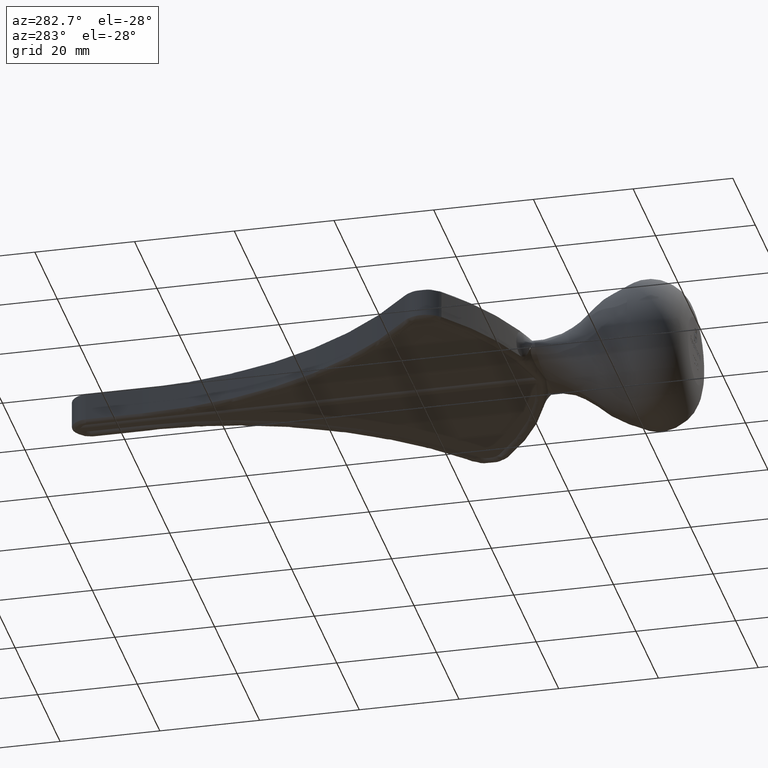
[diagram: clean part render]
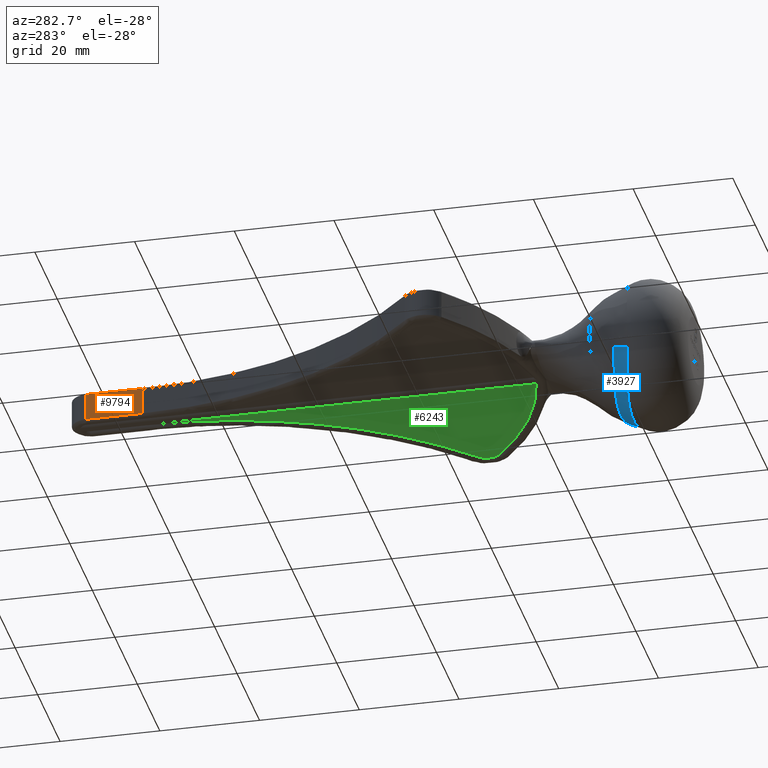
[diagram: same view with three faces highlighted in distinct colors, each labeled with its STEP entity id]
A machine part, auxiliary view with three faces highlighted in distinct colors.
Their STEP definitions:

[orange] entity #9794 — the highlighted planar face has unit normal (1, -0, 0).
#63 = CARTESIAN_POINT ( 'NONE',  ( -3.499999999999989342, 80.22055313612831640, 2.750000000000000000 ) ) ;
#556 = ORIENTED_EDGE ( 'NONE', *, *, #1706, .T. ) ;
#1153 = CARTESIAN_POINT ( 'NONE',  ( -3.499999999999989342, 80.22055313612831640, -2.750000000000000000 ) ) ;
#1706 = EDGE_CURVE ( 'NONE', #9170, #10232, #2987, .T. ) ;
#2189 = VERTEX_POINT ( 'NONE', #1153 ) ;
#2220 = AXIS2_PLACEMENT_3D ( 'NONE', #3079, #9316, #3130 ) ;
#2453 = CARTESIAN_POINT ( 'NONE',  ( -3.500000000000000000, 91.50000000000000000, 2.750000000000000000 ) ) ;
#2479 = ORIENTED_EDGE ( 'NONE', *, *, #8619, .F. ) ;
#2632 = LINE ( 'NONE', #2966, #13287 ) ;
#2818 = CARTESIAN_POINT ( 'NONE',  ( -3.499999999999989342, 80.22055313612831640, 2.750000000000000000 ) ) ;
#2830 = VECTOR ( 'NONE', #9673, 1000.000000000000000 ) ;
#2966 = CARTESIAN_POINT ( 'NONE',  ( -3.500000000000000000, 91.50000000000000000, 2.750000000000000000 ) ) ;
#2987 = LINE ( 'NONE', #2453, #2830 ) ;
#3079 = CARTESIAN_POINT ( 'NONE',  ( -3.500000000000000000, 91.50000000000000000, 2.750000000000000000 ) ) ;
#3130 = DIRECTION ( 'NONE',  ( -2.691413967012009915E-16, -1.000000000000000000, 0.000000000000000000 ) ) ;
#3561 = EDGE_CURVE ( 'NONE', #2189, #12040, #10867, .T. ) ;
#3812 = EDGE_CURVE ( 'NONE', #10232, #12040, #2632, .T. ) ;
#4338 = ORIENTED_EDGE ( 'NONE', *, *, #3812, .T. ) ;
#4439 = VECTOR ( 'NONE', #6558, 1000.000000000000000 ) ;
#4660 = FACE_OUTER_BOUND ( 'NONE', #6322, .T. ) ;
#5181 = DIRECTION ( 'NONE',  ( 0.000000000000000000, -0.000000000000000000, -1.000000000000000000 ) ) ;
#6322 = EDGE_LOOP ( 'NONE', ( #2479, #556, #4338, #9388 ) ) ;
#6558 = DIRECTION ( 'NONE',  ( 2.691413967012009915E-16, 1.000000000000000000, 0.000000000000000000 ) ) ;
#7699 = CARTESIAN_POINT ( 'NONE',  ( -3.500000000000000000, 91.50000000000000000, -2.750000000000000000 ) ) ;
#7845 = CARTESIAN_POINT ( 'NONE',  ( -3.500000000000000000, 91.50000000000000000, 2.750000000000000000 ) ) ;
#8619 = EDGE_CURVE ( 'NONE', #9170, #2189, #9665, .T. ) ;
#9170 = VERTEX_POINT ( 'NONE', #2818 ) ;
#9272 = PLANE ( 'NONE',  #2220 ) ;
#9316 = DIRECTION ( 'NONE',  ( 1.000000000000000000, -2.691413967012009915E-16, 0.000000000000000000 ) ) ;
#9388 = ORIENTED_EDGE ( 'NONE', *, *, #3561, .F. ) ;
#9665 = LINE ( 'NONE', #63, #9831 ) ;
#9673 = DIRECTION ( 'NONE',  ( 2.691413967012009915E-16, 1.000000000000000000, 0.000000000000000000 ) ) ;
#9721 = DIRECTION ( 'NONE',  ( 0.000000000000000000, -0.000000000000000000, -1.000000000000000000 ) ) ;
#9794 = ADVANCED_FACE ( 'NONE', ( #4660 ), #9272, .F. ) ;
#9831 = VECTOR ( 'NONE', #9721, 1000.000000000000000 ) ;
#10024 = CARTESIAN_POINT ( 'NONE',  ( -3.500000000000000000, 91.50000000000000000, -2.750000000000000000 ) ) ;
#10232 = VERTEX_POINT ( 'NONE', #7845 ) ;
#10867 = LINE ( 'NONE', #7699, #4439 ) ;
#12040 = VERTEX_POINT ( 'NONE', #10024 ) ;
#13287 = VECTOR ( 'NONE', #5181, 1000.000000000000000 ) ;

[blue] entity #3927 — the highlighted face is a freeform B-spline surface patch.
#37 = CARTESIAN_POINT ( 'NONE',  ( 9.457049239446869038, -15.29811107170672102, -9.337721177825997643 ) ) ;
#86 = CARTESIAN_POINT ( 'NONE',  ( 2.958696135714218300, -16.35677507865203850, -12.82936167111377301 ) ) ;
#103 = CARTESIAN_POINT ( 'NONE',  ( -4.798319511688534433, -15.21649905641184297, -11.89051643179240436 ) ) ;
#126 = CARTESIAN_POINT ( 'NONE',  ( -11.73944351171987677, -15.46893405801362142, -6.956195037441780471 ) ) ;
#168 = CARTESIAN_POINT ( 'NONE',  ( -10.90717565962784263, -15.40324440553401431, -7.952809323019762289 ) ) ;
#207 = CARTESIAN_POINT ( 'NONE',  ( -10.39664460703154880, -18.59951276368440887, -9.933711574310580161 ) ) ;
#254 = CARTESIAN_POINT ( 'NONE',  ( -9.586236405178045317, -18.44489316331959117, -10.64861187983610691 ) ) ;
#295 = CARTESIAN_POINT ( 'NONE',  ( -5.789350719536143330, -16.53583841179381508, -12.00641579287233007 ) ) ;
#374 = CARTESIAN_POINT ( 'NONE',  ( -13.01163646434195975, -15.57864506506640012, -4.761838968377503534 ) ) ;
#418 = CARTESIAN_POINT ( 'NONE',  ( -13.51708513831058767, -19.27571513717974128, -5.583400365635185381 ) ) ;
#525 = DIRECTION ( 'NONE',  ( -0.9281985529405438751, 0.000000000000000000, -0.3720852675383430896 ) ) ;
#595 = CARTESIAN_POINT ( 'NONE',  ( -0.7397197471933926183, -17.51919571465572290, -13.83219947119096815 ) ) ;
#723 = CARTESIAN_POINT ( 'NONE',  ( -1.480698699643310023, -17.53802779033320647, -13.78382446333015388 ) ) ;
#828 = CARTESIAN_POINT ( 'NONE',  ( 13.19969417268473855, -16.60361085135690828, -4.688553657042522360 ) ) ;
#908 = CARTESIAN_POINT ( 'NONE',  ( 12.82238443051230803, -17.41923528329976989, -5.713914678092316457 ) ) ;
#958 = CARTESIAN_POINT ( 'NONE',  ( 12.08024265841885025, -18.94797258129899831, -8.070866287226245106 ) ) ;
#1004 = CARTESIAN_POINT ( 'NONE',  ( 10.44896142304235021, -17.05512803860363746, -8.971356741587825923 ) ) ;
#1052 = CARTESIAN_POINT ( 'NONE',  ( 4.042668155017661746, -16.41232446801206990, -12.58425057347027121 ) ) ;
#1076 = CARTESIAN_POINT ( 'NONE',  ( -5.462241461063364056, -15.28140742889219794, -11.67655721187844087 ) ) ;
#1090 = CARTESIAN_POINT ( 'NONE',  ( 12.74525929928090484, -16.50707585591511162, -5.635907293946209151 ) ) ;
#1108 = CARTESIAN_POINT ( 'NONE',  ( 2.957420856037541235, -17.61404452517505348, -13.57499106675135003 ) ) ;
#1127 = CARTESIAN_POINT ( 'NONE',  ( -12.22217726730719001, -16.38608398800847965, -6.514844427469616228 ) ) ;
#1156 = CARTESIAN_POINT ( 'NONE',  ( -0.7778312933347391045, -14.97404586446582364, -12.53400461856547032 ) ) ;
#1178 = CARTESIAN_POINT ( 'NONE',  ( 7.393956338339618739, -15.52167790687000881, -10.84795703786825527 ) ) ;
#1205 = CARTESIAN_POINT ( 'NONE',  ( -6.180086496870091040, -15.11446373184463354, -11.29750778661039057 ) ) ;
#1242 = CARTESIAN_POINT ( 'NONE',  ( -11.77470587056315310, -17.25079574023245144, -7.420751077601813073 ) ) ;
#1286 = CARTESIAN_POINT ( 'NONE',  ( -10.20720848270776848, -15.35111664856822955, -8.665862753030756593 ) ) ;
#1332 = CARTESIAN_POINT ( 'NONE',  ( -4.765083804498443598, -16.45843985883104565, -12.37396995019969381 ) ) ;
#1338 = EDGE_CURVE ( 'NONE', #3590, #9771, #5973, .T. ) ;
#1403 = EDGE_CURVE ( 'NONE', #3592, #9771, #7852, .T. ) ;
#1502 = DIRECTION ( 'NONE',  ( -0.3691393826912759968, 0.1259294015951455126, -0.9208028572719527682 ) ) ;
#1519 = CARTESIAN_POINT ( 'NONE',  ( -13.79074411038370940, -19.34070796460176567, -4.914832169498542846 ) ) ;
#1609 = CARTESIAN_POINT ( 'NONE',  ( 12.47189961283214643, -19.03531161037639308, -7.511320940162002024 ) ) ;
#1747 = CARTESIAN_POINT ( 'NONE',  ( -3.640387314741418745, -17.65844092515062158, -13.44917949643277844 ) ) ;
#1971 = CARTESIAN_POINT ( 'NONE',  ( 12.57709855471665072, -16.47108014466688886, -5.939049160810374595 ) ) ;
#1982 =( BOUNDED_SURFACE ( )  B_SPLINE_SURFACE ( 3, 2, ( 
 ( #3133, #9317, #6254 ),
 ( #10348, #13359, #2184 ),
 ( #6299, #908, #4243 ),
 ( #4196, #5084, #10403 ),
 ( #13397, #5128, #958 ),
 ( #2133, #8337, #6157 ),
 ( #12376, #1004, #3036 ),
 ( #37, #8384, #5262 ),
 ( #6112, #2038, #8245 ),
 ( #11434, #5213, #8289 ),
 ( #8199, #9276, #7245 ),
 ( #12430, #7161, #2083 ),
 ( #7296, #3084, #1987 ),
 ( #9226, #1052, #10253 ),
 ( #4102, #10297, #3184 ),
 ( #4147, #86, #1108 ),
 ( #9366, #11284, #11337 ),
 ( #7347, #5164, #3366 ),
 ( #6432, #7398, #4292 ),
 ( #8465, #6473, #5399 ),
 ( #1156, #5442, #7530 ),
 ( #8428, #5353, #12650 ),
 ( #5478, #6515, #11619 ),
 ( #2271, #9617, #2400 ),
 ( #8543, #10494, #12605 ),
 ( #4373, #1332, #9502 ),
 ( #10618, #10581, #9580 ),
 ( #10533, #295, #7572 ),
 ( #1205, #11482, #8581 ),
 ( #3448, #2229, #4455 ),
 ( #12683, #6350, #3273 ),
 ( #3322, #4414, #8503 ),
 ( #4333, #9458, #254 ),
 ( #1286, #11525, #207 ),
 ( #12564, #6388, #11661 ),
 ( #168, #7441, #5307 ),
 ( #11571, #7488, #12518 ),
 ( #126, #1242, #2359 ),
 ( #3409, #9543, #2315 ),
 ( #10658, #10781, #6594 ),
 ( #11873, #12719, #6690 ),
 ( #374, #9790, #418 ),
 ( #7651, #8750, #9655 ),
 ( #6736, #4624, #4491 ) ),
 .UNSPECIFIED., .F., .F., .F. ) 
 B_SPLINE_SURFACE_WITH_KNOTS ( ( 4, 2, 2, 2, 2, 2, 2, 2, 2, 2, 2, 2, 2, 2, 2, 2, 2, 2, 2, 2, 2, 4 ),
 ( 3, 3 ),
 ( 0.1093376448059358297, 0.1143562703609698611, 0.1193748959160038925, 0.1243935214710379239, 0.1294121470260719553, 0.1344307725811059728, 0.1394493981361399904, 0.1419587109136569991, 0.1444680236911740079, 0.1494866492462080532, 0.1519959620237250619, 0.1545052748012420984, 0.1595239003562761160, 0.1620332131337931247, 0.1645425259113101335, 0.1695611514663441510, 0.1745797770213781686, 0.1770890897988952051, 0.1795984025764122138, 0.1846170281314462591, 0.1871263409089632679, 0.1896356536864802766 ),
 ( 0.3551524494028818202, 1.000000000000000000 ),
 .UNSPECIFIED. ) 
 GEOMETRIC_REPRESENTATION_ITEM ( )  RATIONAL_B_SPLINE_SURFACE ( (
 ( 0.9948975213490531821, 0.9928164951987159537, 1.000000000000000000),
 ( 0.9949707560607553569, 0.9929195984038680090, 1.000000000000000000),
 ( 0.9950577991419862212, 0.9930421416685665248, 1.000000000000000000),
 ( 0.9952559075926470378, 0.9933210478833397472, 1.000000000000000000),
 ( 0.9953671019757373006, 0.9934775924647964995, 1.000000000000000000),
 ( 0.9956088890759111631, 0.9938179914970718398, 1.000000000000000000),
 ( 0.9957363100944618406, 0.9939973806843981352, 1.000000000000000000),
 ( 0.9959957949629936191, 0.9943626954512932992, 1.000000000000000000),
 ( 0.9961279729569889607, 0.9945487817280704856, 1.000000000000000000),
 ( 0.9963866073750364816, 0.9949128991915461295, 1.000000000000000000),
 ( 0.9965100428735080840, 0.9950866773798694442, 1.000000000000000000),
 ( 0.9967354102382897096, 0.9954039599512843894, 1.000000000000000000),
 ( 0.9968373714651945772, 0.9955475056695752833, 1.000000000000000000),
 ( 0.9969664583586679285, 0.9957292401524580061, 1.000000000000000000),
 ( 0.9970053556024974784, 0.9957840014864921541, 1.000000000000000000),
 ( 0.9970729774179256655, 0.9958792025973697282, 1.000000000000000000),
 ( 0.9971018592900334765, 0.9959198638291258954, 1.000000000000000000),
 ( 0.9971724313196099754, 0.9960192183875629102, 1.000000000000000000),
 ( 0.9971981516826877723, 0.9960554287010791041, 1.000000000000000000),
 ( 0.9971983799292269968, 0.9960557500370849082, 1.000000000000000000),
 ( 0.9971918432924180564, 0.9960465474582770318, 1.000000000000000000),
 ( 0.9971663973789384183, 0.9960107235275642568, 1.000000000000000000),
 ( 0.9971476394696836554, 0.9959843152776898245, 1.000000000000000000),
 ( 0.9970754666317351855, 0.9958827070273881255, 1.000000000000000000),
 ( 0.9970062109783303095, 0.9957852057240446086, 1.000000000000000000),
 ( 0.9968776428382877253, 0.9956042015661700217, 1.000000000000000000),
 ( 0.9968306540834790397, 0.9955380486297509268, 1.000000000000000000),
 ( 0.9967294403372302103, 0.9953955552492054215, 1.000000000000000000),
 ( 0.9966749587315288927, 0.9953188535316854768, 1.000000000000000000),
 ( 0.9965044063650403405, 0.9950787420432595232, 1.000000000000000000),
 ( 0.9963814606360966719, 0.9949056533750687548, 1.000000000000000000),
 ( 0.9961275577659041147, 0.9945481972029101003, 1.000000000000000000),
 ( 0.9959965713265797049, 0.9943637884517604331, 1.000000000000000000),
 ( 0.9958010599873012847, 0.9940885385701850874, 1.000000000000000000),
 ( 0.9957358534378089043, 0.9939967377820984051, 1.000000000000000000),
 ( 0.9956092823620374954, 0.9938185451834209427, 1.000000000000000000),
 ( 0.9955476391520692303, 0.9937317610290785641, 1.000000000000000000),
 ( 0.9953689089802659762, 0.9934801364491215869, 1.000000000000000000),
 ( 0.9952580511065196589, 0.9933240656210412522, 1.000000000000000000),
 ( 0.9951084358849973110, 0.9931134304110433852, 1.000000000000000000),
 ( 0.9950612427326201992, 0.9930469897142998326, 1.000000000000000000),
 ( 0.9949734310534734671, 0.9929233643820030153, 1.000000000000000000),
 ( 0.9949332992143404830, 0.9928668649277538893, 1.000000000000000000),
 ( 0.9948969561234477510, 0.9928156994480368258, 1.000000000000000000) ) ) 
 REPRESENTATION_ITEM ( '' )  SURFACE ( )  );
#1987 = CARTESIAN_POINT ( 'NONE',  ( 5.123239466780427520, -17.79383572019698434, -13.03924909393638210 ) ) ;
#2038 = CARTESIAN_POINT ( 'NONE',  ( 8.882745534493651007, -16.84957000602109289, -10.31198042062061226 ) ) ;
#2083 = CARTESIAN_POINT ( 'NONE',  ( 5.813314654536835491, -17.87193534384392279, -12.79213700888061567 ) ) ;
#2106 = CARTESIAN_POINT ( 'NONE',  ( -6.746207464365888029, -15.42919293179144979, -11.16154940878847768 ) ) ;
#2133 = CARTESIAN_POINT ( 'NONE',  ( 10.90935529974735019, -15.40310906604836738, -7.969882195242342426 ) ) ;
#2154 = CARTESIAN_POINT ( 'NONE',  ( -1.382506070204148951, -15.00095670578435225, -12.56141189600901242 ) ) ;
#2184 = CARTESIAN_POINT ( 'NONE',  ( 13.52700793611035657, -19.27827265781812116, -5.597747465019065061 ) ) ;
#2201 = CARTESIAN_POINT ( 'NONE',  ( 1.416375728286790592, -15.02200669266752620, -12.50796576358217926 ) ) ;
#2229 = CARTESIAN_POINT ( 'NONE',  ( -7.105817524059044210, -16.65334323254403870, -11.41584509436411921 ) ) ;
#2271 = CARTESIAN_POINT ( 'NONE',  ( -3.039430344189437250, -15.00550786329297459, -12.27710842595045548 ) ) ;
#2291 = CARTESIAN_POINT ( 'NONE',  ( -11.39962694867027437, -16.21399756312501594, -7.630820897132854164 ) ) ;
#2315 = CARTESIAN_POINT ( 'NONE',  ( -12.48625449143188781, -19.03781958853338452, -7.488432445222212408 ) ) ;
#2359 = CARTESIAN_POINT ( 'NONE',  ( -12.07789672051291596, -18.94679931718204458, -8.072652770780173626 ) ) ;
#2400 = CARTESIAN_POINT ( 'NONE',  ( -2.994524754194295646, -17.61176404448228894, -13.58090155691466450 ) ) ;
#2519 = CIRCLE ( 'NONE', #7991, 20.00000000000000000 ) ;
#2694 = DIRECTION ( 'NONE',  ( 0.3691033053516780682, 0.1263493315876188794, -0.9207597929893702737 ) ) ;
#2714 = CARTESIAN_POINT ( 'NONE',  ( -6.067489878200613695, -17.90621580653599310, -12.67761303867868250 ) ) ;
#2757 = ORIENTED_EDGE ( 'NONE', *, *, #4944, .F. ) ;
#2813 = CARTESIAN_POINT ( 'NONE',  ( 1.453372174739675504, -17.53783223621321952, -13.78652619877020591 ) ) ;
#2852 = CARTESIAN_POINT ( 'NONE',  ( 7.075347963901603698, -18.02652806775360261, -12.30091015326859427 ) ) ;
#3036 = CARTESIAN_POINT ( 'NONE',  ( 10.66013715897807224, -18.65003299312198237, -9.701730195759020958 ) ) ;
#3084 = CARTESIAN_POINT ( 'NONE',  ( 5.103701784650841233, -16.47967681678721164, -12.27590630960402507 ) ) ;
#3133 = CARTESIAN_POINT ( 'NONE',  ( 13.24839756844994376, -15.60012649973596766, -4.188197231203079518 ) ) ;
#3184 = CARTESIAN_POINT ( 'NONE',  ( 3.686186137383397732, -17.66552941298841617, -13.42614428931707593 ) ) ;
#3204 = CARTESIAN_POINT ( 'NONE',  ( -12.76233226860479597, -16.50144521087346661, -5.631231468198829582 ) ) ;
#3273 = CARTESIAN_POINT ( 'NONE',  ( -7.805665704140773542, -18.14476935428000104, -11.84951057428847498 ) ) ;
#3295 = CARTESIAN_POINT ( 'NONE',  ( 8.577552467974754791, -15.69965151152428007, -10.15689007197151916 ) ) ;
#3322 = CARTESIAN_POINT ( 'NONE',  ( -8.918266138564131751, -15.26272126748897584, -9.752310746938846364 ) ) ;
#3366 = CARTESIAN_POINT ( 'NONE',  ( 1.485275898345485679, -17.53865630472351711, -13.78443007586281333 ) ) ;
#3409 = CARTESIAN_POINT ( 'NONE',  ( -12.10384103739786532, -15.49945965896512945, -6.433039732403192268 ) ) ;
#3448 = CARTESIAN_POINT ( 'NONE',  ( -7.157513655971730060, -15.16074770461553989, -10.84624524066063067 ) ) ;
#3590 = VERTEX_POINT ( 'NONE', #9429 ) ;
#3592 = VERTEX_POINT ( 'NONE', #4305 ) ;
#3759 = CARTESIAN_POINT ( 'NONE',  ( -7.714273845964180865, -18.13074741531475098, -11.90131820601197532 ) ) ;
#3858 = CARTESIAN_POINT ( 'NONE',  ( -10.33699011101225018, -18.58789542695154040, -9.988982436002517673 ) ) ;
#3906 = CARTESIAN_POINT ( 'NONE',  ( 12.03659222445771348, -16.35588454959665938, -6.821488642165624228 ) ) ;
#3927 = ADVANCED_FACE ( 'NONE', ( #5221 ), #1982, .F. ) ;
#4102 = CARTESIAN_POINT ( 'NONE',  ( 3.728894839916771176, -15.02471659430088025, -12.11391213487124041 ) ) ;
#4147 = CARTESIAN_POINT ( 'NONE',  ( 2.999032423989690610, -15.00631063595440828, -12.27141123094875574 ) ) ;
#4189 = B_SPLINE_CURVE_WITH_KNOTS ( 'NONE', 3,
 ( #1519, #8756, #10879, #12807, #4539, #8625, #8709, #7836, #3858, #5922, #6826, #3759, #8942, #2714, #10952, #6966, #11003, #1747, #4802, #723, #595, #12006, #2813, #11961, #11096, #12145, #2852, #5871, #6918, #11050, #9966, #10915, #1609, #8846, #5826, #10013 ),
 .UNSPECIFIED., .F., .F.,
 ( 4, 2, 2, 2, 2, 2, 2, 2, 2, 2, 2, 2, 2, 2, 2, 2, 2, 4 ),
 ( 0.000000000000000000, 0.002218132558177811527, 0.004436265116355623053, 0.005545331395444530985, 0.006654397674533438049, 0.008872530232711254780, 0.01109066279088907411, 0.01219972906997798291, 0.01330879534906689171, 0.01552692790724471278, 0.01774506046542253385, 0.01996319302360035144, 0.02218132558177817251, 0.02661759069813380771, 0.02883572325631162878, 0.03105385581448944984, 0.03327198837266726744, 0.03549012093084508851 ),
 .UNSPECIFIED. ) ;
#4196 = CARTESIAN_POINT ( 'NONE',  ( 12.10783520724600137, -15.50002472702180611, -6.427753680928030455 ) ) ;
#4243 = CARTESIAN_POINT ( 'NONE',  ( 13.21374316074229149, -19.20461163796068504, -6.245856033130553264 ) ) ;
#4261 = CARTESIAN_POINT ( 'NONE',  ( -9.410799133289360796, -15.83507999400556088, -9.546595041107966750 ) ) ;
#4292 = CARTESIAN_POINT ( 'NONE',  ( 0.7403984025967912386, -17.51946635720752354, -13.83326145603233037 ) ) ;
#4305 = CARTESIAN_POINT ( 'NONE',  ( 13.79001140671309855, -19.34070796459995023, -4.916887610585289892 ) ) ;
#4333 = CARTESIAN_POINT ( 'NONE',  ( -9.455493587581031534, -15.29813016221307898, -9.339457513765172081 ) ) ;
#4364 = CARTESIAN_POINT ( 'NONE',  ( 13.32794806507865992, -16.63029352985583387, -4.360974213385442333 ) ) ;
#4373 = CARTESIAN_POINT ( 'NONE',  ( -4.818280986795801191, -15.05935435228569297, -11.80844914612326413 ) ) ;
#4414 = CARTESIAN_POINT ( 'NONE',  ( -8.884579777898228059, -16.85017957616081574, -10.31023354011382764 ) ) ;
#4455 = CARTESIAN_POINT ( 'NONE',  ( -7.169552464737057207, -18.04971133797727134, -12.19130690519933857 ) ) ;
#4491 = CARTESIAN_POINT ( 'NONE',  ( -13.79074411038370229, -19.34070796460177988, -4.914832169498552616 ) ) ;
#4539 = CARTESIAN_POINT ( 'NONE',  ( -12.04892780250284190, -18.94041037271498951, -8.112572827725474056 ) ) ;
#4624 = CARTESIAN_POINT ( 'NONE',  ( -13.34923235756614446, -17.50753325764754464, -4.486290600646448468 ) ) ;
#4802 = CARTESIAN_POINT ( 'NONE',  ( -2.928368314962252583, -17.60774930886003986, -13.59213195345312641 ) ) ;
#4850 = CARTESIAN_POINT ( 'NONE',  ( 13.32794806507865992, -16.63029352985583387, -4.360974213385442333 ) ) ;
#4944 = EDGE_CURVE ( 'NONE', #11896, #3592, #4189, .T. ) ;
#5084 = CARTESIAN_POINT ( 'NONE',  ( 12.15673032314271396, -17.31151059490407107, -6.865792812034639425 ) ) ;
#5128 = CARTESIAN_POINT ( 'NONE',  ( 11.77715349632990005, -17.25157373764187341, -7.418844931831076295 ) ) ;
#5164 = CARTESIAN_POINT ( 'NONE',  ( 1.490840620864071653, -16.30504792140095915, -13.04823168562984392 ) ) ;
#5213 = CARTESIAN_POINT ( 'NONE',  ( 7.700228600624077657, -16.71461074730005691, -11.08655105975768507 ) ) ;
#5221 = FACE_OUTER_BOUND ( 'NONE', #6565, .T. ) ;
#5262 = CARTESIAN_POINT ( 'NONE',  ( 9.586507786708665435, -18.44481311700355874, -10.64798144486785603 ) ) ;
#5278 = CARTESIAN_POINT ( 'NONE',  ( 5.475288716315183990, -15.29029279813274655, -11.66076086480184770 ) ) ;
#5307 = CARTESIAN_POINT ( 'NONE',  ( -11.15927842397584158, -18.75254124139632594, -9.165639953592050304 ) ) ;
#5329 = CARTESIAN_POINT ( 'NONE',  ( -10.71000879150799001, -16.07491794714735178, -8.415623983697326338 ) ) ;
#5353 = CARTESIAN_POINT ( 'NONE',  ( -1.519361227703685202, -16.30812344982388140, -13.03216730655451094 ) ) ;
#5399 = CARTESIAN_POINT ( 'NONE',  ( -0.3849534950933476418, -17.51929679352243241, -13.83235995077902203 ) ) ;
#5442 = CARTESIAN_POINT ( 'NONE',  ( -0.7653362882984452442, -16.29504078986603943, -13.08561999759126593 ) ) ;
#5478 = CARTESIAN_POINT ( 'NONE',  ( -1.921234668531818901, -14.98595037652741979, -12.43813614465347150 ) ) ;
#5628 = DIRECTION ( 'NONE',  ( 0.9281920027985425259, 0.000000000000000000, -0.3721016070118893793 ) ) ;
#5826 = CARTESIAN_POINT ( 'NONE',  ( 13.52438731064385458, -19.27765053853358879, -5.604531705133371844 ) ) ;
#5871 = CARTESIAN_POINT ( 'NONE',  ( 8.934446611669518035, -18.32802324559983376, -11.13504709768784018 ) ) ;
#5922 = CARTESIAN_POINT ( 'NONE',  ( -9.514504823714380777, -18.43177163656259054, -10.70554959443144050 ) ) ;
#5973 = B_SPLINE_CURVE_WITH_KNOTS ( 'NONE', 3,
 ( #7366, #12446, #3204, #1127, #8358, #10427, #2291, #5329, #7419, #4261, #11547, #6272, #12538, #7315, #2106, #1076, #103, #8402, #2154, #11597, #12624, #2201, #11407, #7270, #9339, #11456, #6367, #5278, #12492, #6320, #1178, #3295, #8443, #9478, #10508, #6573, #3906, #1971, #1090, #6235, #828, #4364 ),
 .UNSPECIFIED., .F., .F.,
 ( 4, 2, 2, 2, 2, 2, 2, 2, 2, 2, 2, 2, 2, 2, 2, 2, 2, 2, 2, 2, 4 ),
 ( 1.734723475976807094E-18, 0.002083995599127661056, 0.003125993398691491801, 0.004167991198255322112, 0.006251986797382976663, 0.007293984596946804372, 0.008335982396510632081, 0.01041997799563829097, 0.01250397359476595159, 0.01667196479302127110, 0.01771396259258509881, 0.01875596039214892652, 0.02083995599127658888, 0.02188195379084041658, 0.02292395159040424429, 0.02500794718953190665, 0.02709194278865955513, 0.02917593838778721749, 0.03125993398691486597, 0.03230193178647869368, 0.03334392958604252138 ),
 .UNSPECIFIED. ) ;
#6112 = CARTESIAN_POINT ( 'NONE',  ( 8.917084358782574327, -15.26240838805927424, -9.753498298898422902 ) ) ;
#6157 = CARTESIAN_POINT ( 'NONE',  ( 11.15911070194094812, -18.75194994643697655, -9.187752957157835354 ) ) ;
#6235 = CARTESIAN_POINT ( 'NONE',  ( 13.05657643150231095, -16.57334904289698230, -5.010786372612152206 ) ) ;
#6254 = CARTESIAN_POINT ( 'NONE',  ( 13.79001140671310210, -19.34070796459994668, -4.916887610585285451 ) ) ;
#6272 = CARTESIAN_POINT ( 'NONE',  ( -8.564797070143425728, -15.69337296847590046, -10.14785604671272523 ) ) ;
#6299 = CARTESIAN_POINT ( 'NONE',  ( 12.74671492901847181, -15.55509780330079472, -5.337970460863385114 ) ) ;
#6320 = CARTESIAN_POINT ( 'NONE',  ( 6.774586878982749916, -15.43811857135835197, -11.15043751318798471 ) ) ;
#6350 = CARTESIAN_POINT ( 'NONE',  ( -7.722111533027473662, -16.71750492595000637, -11.07354624330572257 ) ) ;
#6367 = CARTESIAN_POINT ( 'NONE',  ( 4.814412867835279108, -15.22570337788982187, -11.87524180911290372 ) ) ;
#6388 = CARTESIAN_POINT ( 'NONE',  ( -10.44661883712011097, -17.05588722685858016, -8.954844684494201346 ) ) ;
#6432 = CARTESIAN_POINT ( 'NONE',  ( 0.7583687798804772395, -14.97236858474128773, -12.54881169898445137 ) ) ;
#6473 = CARTESIAN_POINT ( 'NONE',  ( -0.3857627949638170461, -16.29171811923476909, -13.09909382773660447 ) ) ;
#6515 = CARTESIAN_POINT ( 'NONE',  ( -1.892185883201314089, -16.31780702733040300, -12.99240063173633253 ) ) ;
#6565 = EDGE_LOOP ( 'NONE', ( #8843, #12869, #13123, #2757 ) ) ;
#6573 = CARTESIAN_POINT ( 'NONE',  ( 11.62842996376847715, -16.26945858271401590, -7.373946743763190703 ) ) ;
#6594 = CARTESIAN_POINT ( 'NONE',  ( -13.03076591525687355, -19.16222258529811739, -6.558511809441230689 ) ) ;
#6690 = CARTESIAN_POINT ( 'NONE',  ( -13.20119871013934265, -19.20174511676422568, -6.238883991312033750 ) ) ;
#6736 = CARTESIAN_POINT ( 'NONE',  ( -13.24963693978466139, -15.60012938958971063, -4.184626470856396274 ) ) ;
#6826 = CARTESIAN_POINT ( 'NONE',  ( -8.934544231011846804, -18.32855096487866575, -11.13453707922267100 ) ) ;
#6918 = CARTESIAN_POINT ( 'NONE',  ( 9.519077273615918600, -18.43244181694802108, -10.70160046693846567 ) ) ;
#6966 = CARTESIAN_POINT ( 'NONE',  ( -5.037470531124483841, -17.78903400185528483, -13.05351879397278303 ) ) ;
#7161 = CARTESIAN_POINT ( 'NONE',  ( 5.781798118571752632, -16.53286198436824250, -12.02313370510436918 ) ) ;
#7245 = CARTESIAN_POINT ( 'NONE',  ( 7.143026572127591400, -18.04523328360379963, -12.20390228023001278 ) ) ;
#7270 = CARTESIAN_POINT ( 'NONE',  ( 2.796098273642926735, -15.07534674194018187, -12.35051207183533961 ) ) ;
#7296 = CARTESIAN_POINT ( 'NONE',  ( 5.157763368393810666, -15.07042659763371439, -11.70925144423955011 ) ) ;
#7315 = CARTESIAN_POINT ( 'NONE',  ( -7.368403114898018913, -15.51227963896475792, -10.86003354859651182 ) ) ;
#7347 = CARTESIAN_POINT ( 'NONE',  ( 1.515055634206965207, -14.97928168979034602, -12.49539982909574576 ) ) ;
#7366 = CARTESIAN_POINT ( 'NONE',  ( -13.32823861745692540, -16.62243690946791119, -4.356419388024547423 ) ) ;
#7398 = CARTESIAN_POINT ( 'NONE',  ( 0.7447317890115353611, -16.29183479751364771, -13.09997608204412245 ) ) ;
#7419 = CARTESIAN_POINT ( 'NONE',  ( -10.21186354844403610, -15.97857962588260961, -8.893130040399666925 ) ) ;
#7441 = CARTESIAN_POINT ( 'NONE',  ( -10.91656691618762665, -17.12283125514221638, -8.459263035523269636 ) ) ;
#7488 = CARTESIAN_POINT ( 'NONE',  ( -11.13962423694868065, -17.15554792448010346, -8.204692023742639506 ) ) ;
#7530 = CARTESIAN_POINT ( 'NONE',  ( -0.7624297806293430790, -17.52412282731862447, -13.81963677766422904 ) ) ;
#7572 = CARTESIAN_POINT ( 'NONE',  ( -5.821651146673415766, -17.87641417634935692, -12.77506077024840714 ) ) ;
#7651 = CARTESIAN_POINT ( 'NONE',  ( -13.13681562326582686, -15.58990590376858876, -4.474407885717639033 ) ) ;
#7726 = CARTESIAN_POINT ( 'NONE',  ( 31.80714857034781673, -13.49999999999379163, -11.34097500872665165 ) ) ;
#7836 = CARTESIAN_POINT ( 'NONE',  ( -10.60420804468366462, -18.64036343765766190, -9.736745893566542520 ) ) ;
#7852 = CIRCLE ( 'NONE', #8412, 20.00000000000000000 ) ;
#7991 = AXIS2_PLACEMENT_3D ( 'NONE', #12026, #2694, #525 ) ;
#8199 = CARTESIAN_POINT ( 'NONE',  ( 7.131838424202369353, -15.15917754386467209, -10.85871034634314114 ) ) ;
#8245 = CARTESIAN_POINT ( 'NONE',  ( 9.011402795260206489, -18.34140386276467893, -11.08048391534929245 ) ) ;
#8289 = CARTESIAN_POINT ( 'NONE',  ( 7.782707787747229489, -18.14045527421493631, -11.86282975727623068 ) ) ;
#8337 = CARTESIAN_POINT ( 'NONE',  ( 10.91771773364498799, -17.12253567957865741, -8.478418138632280332 ) ) ;
#8358 = CARTESIAN_POINT ( 'NONE',  ( -12.02944666831609943, -16.34515077336613942, -6.801466918247887961 ) ) ;
#8384 = CARTESIAN_POINT ( 'NONE',  ( 9.431673051005564190, -16.91868059538322910, -9.888012305933246537 ) ) ;
#8402 = CARTESIAN_POINT ( 'NONE',  ( -2.761879289639259660, -15.05730969184364376, -12.40105550670294399 ) ) ;
#8412 = AXIS2_PLACEMENT_3D ( 'NONE', #7726, #1502, #5628 ) ;
#8428 = CARTESIAN_POINT ( 'NONE',  ( -1.543368462439549393, -14.98088731935082940, -12.47900103683919326 ) ) ;
#8443 = CARTESIAN_POINT ( 'NONE',  ( 9.141802957873574442, -15.79409163340616118, -9.768348277092190557 ) ) ;
#8465 = CARTESIAN_POINT ( 'NONE',  ( -0.3914241380788694435, -14.97230755226132537, -12.54792106781364858 ) ) ;
#8503 = CARTESIAN_POINT ( 'NONE',  ( -9.013987384100961009, -18.34234170687897603, -11.07814445722322283 ) ) ;
#8543 = CARTESIAN_POINT ( 'NONE',  ( -3.764312488606893048, -15.02436028993214201, -12.11865166427297602 ) ) ;
#8581 = CARTESIAN_POINT ( 'NONE',  ( -6.164960925200402286, -17.91830488181858172, -12.63758469995549483 ) ) ;
#8625 = CARTESIAN_POINT ( 'NONE',  ( -11.35580595644098167, -18.79339674947276961, -8.946609001626317337 ) ) ;
#8709 = CARTESIAN_POINT ( 'NONE',  ( -11.11315580960912719, -18.74303337954073001, -9.215879549495756606 ) ) ;
#8750 = CARTESIAN_POINT ( 'NONE',  ( -13.23083977028919023, -17.48747492182565821, -4.795567338579712846 ) ) ;
#8756 = CARTESIAN_POINT ( 'NONE',  ( -13.52508403914305823, -19.27741821103181508, -5.602693070654983565 ) ) ;
#8843 = ORIENTED_EDGE ( 'NONE', *, *, #12691, .F. ) ;
#8846 = CARTESIAN_POINT ( 'NONE',  ( 13.20682223416249457, -19.20297947113690284, -6.260340653042188563 ) ) ;
#8942 = CARTESIAN_POINT ( 'NONE',  ( -7.073949167166185603, -18.03613433512364495, -12.23908126536941232 ) ) ;
#9226 = CARTESIAN_POINT ( 'NONE',  ( 4.091433968046278125, -15.03530693866921730, -12.02181374109583345 ) ) ;
#9276 = CARTESIAN_POINT ( 'NONE',  ( 7.080031770678735015, -16.65031850080854881, -11.42845677866639775 ) ) ;
#9317 = CARTESIAN_POINT ( 'NONE',  ( 13.34827200357700683, -17.50752765184981996, -4.489092771251558922 ) ) ;
#9339 = CARTESIAN_POINT ( 'NONE',  ( 3.475867144941962472, -15.11662342334098064, -12.22495910525064922 ) ) ;
#9366 = CARTESIAN_POINT ( 'NONE',  ( 2.630471442005202665, -14.99845236785429314, -12.33719168660900323 ) ) ;
#9429 = CARTESIAN_POINT ( 'NONE',  ( -13.32823861745692540, -16.62243690946791119, -4.356419388024547423 ) ) ;
#9458 = CARTESIAN_POINT ( 'NONE',  ( -9.430777555049610683, -16.91872002957711985, -9.889211486809355023 ) ) ;
#9478 = CARTESIAN_POINT ( 'NONE',  ( 10.21114718731301174, -15.98663499679575750, -8.896930436721127933 ) ) ;
#9502 = CARTESIAN_POINT ( 'NONE',  ( -4.779844895126102777, -17.76272592762482816, -13.13470964937241092 ) ) ;
#9543 = CARTESIAN_POINT ( 'NONE',  ( -12.15272435349731950, -17.31040639195654407, -6.871496123370955722 ) ) ;
#9580 = CARTESIAN_POINT ( 'NONE',  ( -5.129814159565820653, -17.79872338921043351, -13.02328407619640238 ) ) ;
#9617 = CARTESIAN_POINT ( 'NONE',  ( -2.997305822680014664, -16.35523215909841355, -12.83520699238722962 ) ) ;
#9655 = CARTESIAN_POINT ( 'NONE',  ( -13.66079513655790834, -19.30974946001906645, -5.251302824723989460 ) ) ;
#9771 = VERTEX_POINT ( 'NONE', #4850 ) ;
#9790 = CARTESIAN_POINT ( 'NONE',  ( -13.09965931760754998, -17.46539392519614609, -5.101705074513395388 ) ) ;
#9966 = CARTESIAN_POINT ( 'NONE',  ( 11.11732739303261575, -18.74328375452171258, -9.233672982182309141 ) ) ;
#10013 = CARTESIAN_POINT ( 'NONE',  ( 13.79001140671309855, -19.34070796459995023, -4.916887610585289892 ) ) ;
#10253 = CARTESIAN_POINT ( 'NONE',  ( 4.049619005508516167, -17.69519917372679529, -13.33863474711957586 ) ) ;
#10297 = CARTESIAN_POINT ( 'NONE',  ( 3.682545012800507500, -16.39202992842410112, -12.67481597426130158 ) ) ;
#10348 = CARTESIAN_POINT ( 'NONE',  ( 13.02015252167133319, -15.57950980147529130, -4.774353811116570867 ) ) ;
#10403 = CARTESIAN_POINT ( 'NONE',  ( 12.49051308098939472, -19.03950679782720812, -7.482247427512576543 ) ) ;
#10427 = CARTESIAN_POINT ( 'NONE',  ( -11.61860183717715067, -16.25919378586040764, -7.358976085324137273 ) ) ;
#10494 = CARTESIAN_POINT ( 'NONE',  ( -3.716188999520201541, -16.39132840768748167, -12.68003257430164155 ) ) ;
#10508 = CARTESIAN_POINT ( 'NONE',  ( 10.71852428069716723, -16.08529377641625402, -8.409860320251512533 ) ) ;
#10533 = CARTESIAN_POINT ( 'NONE',  ( -5.844285251455106689, -15.09966239923188169, -11.43778786686105953 ) ) ;
#10581 = CARTESIAN_POINT ( 'NONE',  ( -5.109864230579391098, -16.48298098775624254, -12.25967792870301132 ) ) ;
#10618 = CARTESIAN_POINT ( 'NONE',  ( -5.164083027539730253, -15.07214256878667946, -11.69291491738453281 ) ) ;
#10658 = CARTESIAN_POINT ( 'NONE',  ( -12.58525089759505633, -15.54095848893749832, -5.612659910715321665 ) ) ;
#10781 = CARTESIAN_POINT ( 'NONE',  ( -12.65405706039242162, -17.39157601831168876, -6.004797347227227355 ) ) ;
#10879 = CARTESIAN_POINT ( 'NONE',  ( -13.20252752272226893, -19.20139759691786807, -6.268406969600841094 ) ) ;
#10915 = CARTESIAN_POINT ( 'NONE',  ( 12.05370343506731956, -18.94211518117778326, -8.107453715695911001 ) ) ;
#10952 = CARTESIAN_POINT ( 'NONE',  ( -5.725309051447100117, -17.86507890712579538, -12.81182451433713432 ) ) ;
#11003 = CARTESIAN_POINT ( 'NONE',  ( -4.690453602623596119, -17.75394546055666112, -13.16161212864184371 ) ) ;
#11050 = CARTESIAN_POINT ( 'NONE',  ( 10.60969599632874782, -18.63992666333135162, -9.751400873235118283 ) ) ;
#11096 = CARTESIAN_POINT ( 'NONE',  ( 3.617714145695973826, -17.65668429030620956, -13.45475330623484389 ) ) ;
#11284 = CARTESIAN_POINT ( 'NONE',  ( 2.593735013449568694, -16.34173263865729453, -12.89371804952151912 ) ) ;
#11297 = CARTESIAN_POINT ( 'NONE',  ( -13.79074411038370940, -19.34070796460176567, -4.914832169498542846 ) ) ;
#11337 = CARTESIAN_POINT ( 'NONE',  ( 2.590846148097444068, -17.59211037407404987, -13.63668913253557591 ) ) ;
#11407 = CARTESIAN_POINT ( 'NONE',  ( 1.762994484739417000, -15.03290822292064455, -12.47643784051406612 ) ) ;
#11434 = CARTESIAN_POINT ( 'NONE',  ( 7.747857681926255680, -15.19253815330283608, -10.51830779185077525 ) ) ;
#11456 = CARTESIAN_POINT ( 'NONE',  ( 4.481531592378685147, -15.19622038892633320, -11.97091763200796422 ) ) ;
#11482 = CARTESIAN_POINT ( 'NONE',  ( -6.125465705038876330, -16.56428925643706052, -11.86675608804301163 ) ) ;
#11525 = CARTESIAN_POINT ( 'NONE',  ( -10.19859456951687093, -17.02151411689620630, -9.196769503485871411 ) ) ;
#11547 = CARTESIAN_POINT ( 'NONE',  ( -9.134758804593307246, -15.78740624523277880, -9.753897240024709703 ) ) ;
#11571 = CARTESIAN_POINT ( 'NONE',  ( -11.12388549811690375, -15.42005221561137418, -7.707849232108088700 ) ) ;
#11597 = CARTESIAN_POINT ( 'NONE',  ( 0.3666038394135613387, -15.00300529496612789, -12.56075895043662172 ) ) ;
#11619 = CARTESIAN_POINT ( 'NONE',  ( -1.887323797244359280, -17.55723925734257307, -13.73109085013521380 ) ) ;
#11661 = CARTESIAN_POINT ( 'NONE',  ( -10.65946613473969329, -18.65134459263705580, -9.682672818811257187 ) ) ;
#11873 = CARTESIAN_POINT ( 'NONE',  ( -12.73509280165949775, -15.55410285183591057, -5.332597759599603471 ) ) ;
#11896 = VERTEX_POINT ( 'NONE', #11297 ) ;
#11961 = CARTESIAN_POINT ( 'NONE',  ( 2.898127229443100195, -17.60629373734489178, -13.59765802949182323 ) ) ;
#12006 = CARTESIAN_POINT ( 'NONE',  ( 0.7258036720380598439, -17.51951196961665502, -13.83312555828127444 ) ) ;
#12026 = CARTESIAN_POINT ( 'NONE',  ( -31.80883857725417485, -13.49999999999999822, -11.33623406123287936 ) ) ;
#12145 = CARTESIAN_POINT ( 'NONE',  ( 5.744439243318891997, -17.84876481077843735, -12.87396508309166876 ) ) ;
#12376 = CARTESIAN_POINT ( 'NONE',  ( 10.45298718685795336, -15.36844289682890619, -8.446035221025452344 ) ) ;
#12430 = CARTESIAN_POINT ( 'NONE',  ( 5.836813512299221074, -15.09812643435037138, -11.45418623025631000 ) ) ;
#12446 = CARTESIAN_POINT ( 'NONE',  ( -13.07200738006651441, -16.56836528515011508, -5.010659073989196521 ) ) ;
#12492 = CARTESIAN_POINT ( 'NONE',  ( 5.804603651805056330, -15.32555826863324633, -11.54140680374705141 ) ) ;
#12518 = CARTESIAN_POINT ( 'NONE',  ( -11.39746497628617483, -18.80212505039726167, -8.898711316582978981 ) ) ;
#12538 = CARTESIAN_POINT ( 'NONE',  ( -8.269678488498184876, -15.64684115062323855, -10.33516481677504828 ) ) ;
#12564 = CARTESIAN_POINT ( 'NONE',  ( -10.44939466740246381, -15.36881429179293157, -8.431368926371769490 ) ) ;
#12605 = CARTESIAN_POINT ( 'NONE',  ( -3.718125635525006967, -17.66442117099212439, -13.43195218041544692 ) ) ;
#12624 = CARTESIAN_POINT ( 'NONE',  ( 0.7186197991762377502, -15.00704510023604676, -12.55015242405147902 ) ) ;
#12650 = CARTESIAN_POINT ( 'NONE',  ( -1.514632892677604925, -17.54314971617273500, -13.76890426110138677 ) ) ;
#12683 = CARTESIAN_POINT ( 'NONE',  ( -7.769285165241124780, -15.19403687033635109, -10.50570280751294128 ) ) ;
#12691 = EDGE_CURVE ( 'NONE', #3590, #11896, #2519, .T. ) ;
#12719 = CARTESIAN_POINT ( 'NONE',  ( -12.81046930490375324, -17.41731001278215274, -5.708057517167925532 ) ) ;
#12807 = CARTESIAN_POINT ( 'NONE',  ( -12.46477992925927225, -19.03298312602561637, -7.521736013776847862 ) ) ;
#12869 = ORIENTED_EDGE ( 'NONE', *, *, #1338, .T. ) ;
#13123 = ORIENTED_EDGE ( 'NONE', *, *, #1403, .F. ) ;
#13359 = CARTESIAN_POINT ( 'NONE',  ( 13.10870179247942247, -17.46707840543965773, -5.114783510505420239 ) ) ;
#13397 = CARTESIAN_POINT ( 'NONE',  ( 11.74214200284635368, -15.46933371309774330, -6.954223004273766939 ) ) ;

[green] entity #6243 — the highlighted planar face has unit normal (0, -0, 1).
#13 = DIRECTION ( 'NONE',  ( 0.000000000000000000, -0.000000000000000000, 1.000000000000000000 ) ) ;
#279 = CIRCLE ( 'NONE', #9218, 1.563598260179483557 ) ;
#643 = DIRECTION ( 'NONE',  ( 0.7409255649792456655, -0.6715871552972000336, 0.000000000000000000 ) ) ;
#646 = VECTOR ( 'NONE', #12723, 1000.000000000000000 ) ;
#831 = CARTESIAN_POINT ( 'NONE',  ( 1.527834217033746000, 80.55306196984126643, -2.750000000000000444 ) ) ;
#1066 = AXIS2_PLACEMENT_3D ( 'NONE', #8271, #8179, #1083 ) ;
#1083 = DIRECTION ( 'NONE',  ( -0.6662876923412704988, -0.7456947841004016864, 0.000000000000000000 ) ) ;
#1413 = CARTESIAN_POINT ( 'NONE',  ( 0.000000000000000000, 91.50000000000000000, -2.750000000000000444 ) ) ;
#1693 = ORIENTED_EDGE ( 'NONE', *, *, #5967, .F. ) ;
#1782 = VERTEX_POINT ( 'NONE', #11591 ) ;
#2281 = AXIS2_PLACEMENT_3D ( 'NONE', #4785, #8831, #11988 ) ;
#2297 = VERTEX_POINT ( 'NONE', #7747 ) ;
#2680 = CARTESIAN_POINT ( 'NONE',  ( 1.250000000000000000, 95.00200000000000955, -2.749999999999999556 ) ) ;
#2726 = DIRECTION ( 'NONE',  ( 0.000000000000000000, -1.000000000000000000, 0.000000000000000000 ) ) ;
#2901 = DIRECTION ( 'NONE',  ( -0.000000000000000000, -0.000000000000000000, 1.000000000000000000 ) ) ;
#3285 = EDGE_LOOP ( 'NONE', ( #11408, #4890, #6498, #7123, #1693, #10536 ) ) ;
#3530 = EDGE_CURVE ( 'NONE', #11883, #2297, #6686, .T. ) ;
#4785 = CARTESIAN_POINT ( 'NONE',  ( -9.975265011387673297, 59.16497348898742104, -2.750000000000000444 ) ) ;
#4890 = ORIENTED_EDGE ( 'NONE', *, *, #3530, .F. ) ;
#5721 = DIRECTION ( 'NONE',  ( -0.000000000000000000, -0.000000000000000000, 1.000000000000000000 ) ) ;
#5967 = EDGE_CURVE ( 'NONE', #10740, #8394, #13393, .T. ) ;
#6243 = ADVANCED_FACE ( 'NONE', ( #8105 ), #11262, .F. ) ;
#6498 = ORIENTED_EDGE ( 'NONE', *, *, #11659, .F. ) ;
#6633 = EDGE_CURVE ( 'NONE', #1782, #10740, #12615, .T. ) ;
#6686 = LINE ( 'NONE', #9835, #646 ) ;
#7123 = ORIENTED_EDGE ( 'NONE', *, *, #12071, .F. ) ;
#7218 = CARTESIAN_POINT ( 'NONE',  ( 28.25915160276737126, 20.48671023821003701, -2.750000000000000444 ) ) ;
#7747 = CARTESIAN_POINT ( 'NONE',  ( 1.527834217033758213, 91.83250883371295004, -2.750000000000000444 ) ) ;
#8105 = FACE_OUTER_BOUND ( 'NONE', #3285, .T. ) ;
#8179 = DIRECTION ( 'NONE',  ( 0.000000000000000000, 0.000000000000000000, -1.000000000000000000 ) ) ;
#8271 = CARTESIAN_POINT ( 'NONE',  ( 81.63209343867434598, 80.22055313612830219, -2.750000000000000444 ) ) ;
#8394 = VERTEX_POINT ( 'NONE', #8833 ) ;
#8408 = EDGE_CURVE ( 'NONE', #2297, #1782, #279, .T. ) ;
#8708 = AXIS2_PLACEMENT_3D ( 'NONE', #9933, #2901, #643 ) ;
#8831 = DIRECTION ( 'NONE',  ( -0.000000000000000000, -0.000000000000000000, 1.000000000000000000 ) ) ;
#8833 = CARTESIAN_POINT ( 'NONE',  ( 28.75688677820911465, 15.95432059191023733, -2.750000000000000444 ) ) ;
#9218 = AXIS2_PLACEMENT_3D ( 'NONE', #1413, #5721, #12923 ) ;
#9220 = VECTOR ( 'NONE', #2726, 1000.000000000000000 ) ;
#9835 = CARTESIAN_POINT ( 'NONE',  ( 1.527834217033746000, 80.55306196984126643, -2.750000000000000444 ) ) ;
#9933 = CARTESIAN_POINT ( 'NONE',  ( 26.50000000000001066, 18.00000000000000000, -2.750000000000000444 ) ) ;
#10089 = VERTEX_POINT ( 'NONE', #7218 ) ;
#10514 = CARTESIAN_POINT ( 'NONE',  ( 1.249999999999996003, 2.232262931100188919, -2.750000000000000444 ) ) ;
#10536 = ORIENTED_EDGE ( 'NONE', *, *, #6633, .F. ) ;
#10740 = VERTEX_POINT ( 'NONE', #10514 ) ;
#11262 = PLANE ( 'NONE',  #11265 ) ;
#11265 = AXIS2_PLACEMENT_3D ( 'NONE', #11303, #13, #12583 ) ;
#11303 = CARTESIAN_POINT ( 'NONE',  ( 0.000000000000000000, 91.50000000000000000, -2.750000000000000000 ) ) ;
#11408 = ORIENTED_EDGE ( 'NONE', *, *, #8408, .F. ) ;
#11591 = CARTESIAN_POINT ( 'NONE',  ( 1.249999999999995559, 92.43932929222734174, -2.750000000000000444 ) ) ;
#11659 = EDGE_CURVE ( 'NONE', #10089, #11883, #13194, .T. ) ;
#11883 = VERTEX_POINT ( 'NONE', #831 ) ;
#11988 = DIRECTION ( 'NONE',  ( 0.1719020084476859944, -0.9851140540524491174, 0.000000000000000000 ) ) ;
#12069 = CIRCLE ( 'NONE', #8708, 3.046037125567833570 ) ;
#12071 = EDGE_CURVE ( 'NONE', #8394, #10089, #12069, .T. ) ;
#12583 = DIRECTION ( 'NONE',  ( -1.000000000000000000, 0.000000000000000000, 0.000000000000000000 ) ) ;
#12615 = LINE ( 'NONE', #2680, #9220 ) ;
#12723 = DIRECTION ( 'NONE',  ( 1.076565586804806530E-15, 1.000000000000000000, 0.000000000000000000 ) ) ;
#12923 = DIRECTION ( 'NONE',  ( 0.9771270894471194568, 0.2126561804147740209, 0.000000000000000000 ) ) ;
#13194 = CIRCLE ( 'NONE', #1066, 80.10494933256177319 ) ;
#13393 = CIRCLE ( 'NONE', #2281, 58.02878687379265443 ) ;